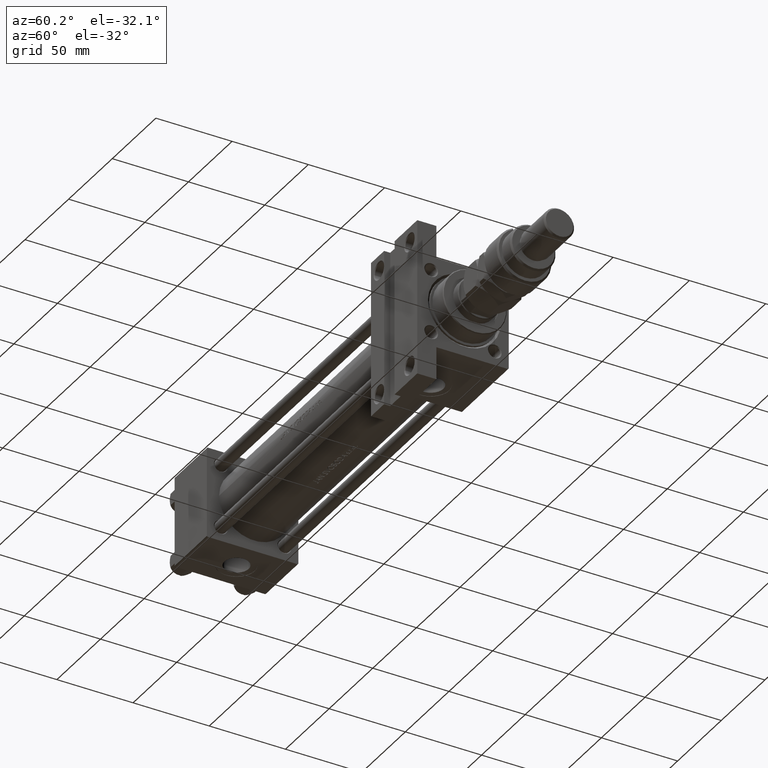
[diagram: clean part render]
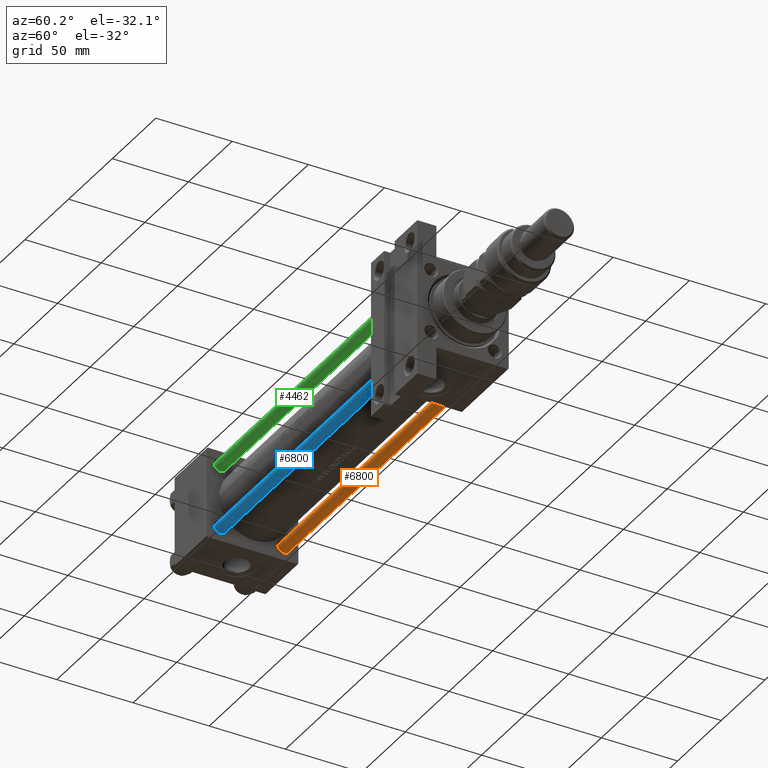
[diagram: same view with three faces highlighted in distinct colors, each labeled with its STEP entity id]
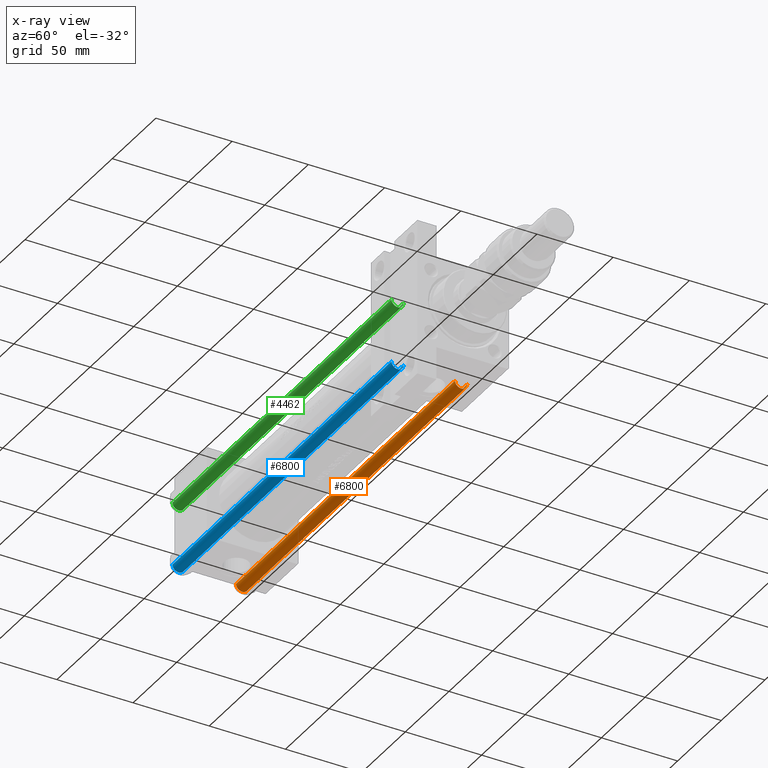
[diagram: x-ray of the same camera — body ghosted, the three highlighted faces saturated]
A machine part, auxiliary view with three faces highlighted in distinct colors.
The next image is the same camera in x-ray (body ghosted, the three faces saturated) — at least one of them is partly hidden behind the body in this view.
Their STEP definitions:

[orange] entity #6800 — the highlighted cylindrical surface (edge-blend (fillet) strip) has radius 4 mm, axis along (-1, -0, 0).
#1890 = VECTOR ( 'NONE', #8563, 1000.000000000000000 ) ;
#2473 = VERTEX_POINT ( 'NONE', #7571 ) ;
#4218 = CIRCLE ( 'NONE', #49252, 4.000000000000000000 ) ;
#5242 = CARTESIAN_POINT ( 'NONE',  ( 4.000000000000000000, 4.898587196589412829E-16, 251.5000000000000568 ) ) ;
#6390 = EDGE_CURVE ( 'NONE', #2473, #31240, #4218, .T. ) ;
#6477 = DIRECTION ( 'NONE',  ( 1.000000000000000000, 0.000000000000000000, 0.000000000000000000 ) ) ;
#6800 = ADVANCED_FACE ( 'NONE', ( #32683 ), #44892, .T. ) ;
#7454 = DIRECTION ( 'NONE',  ( -1.000000000000000000, 0.000000000000000000, 0.000000000000000000 ) ) ;
#7571 = CARTESIAN_POINT ( 'NONE',  ( -4.000000000000000000, 0.000000000000000000, 0.5000000000000004441 ) ) ;
#7733 = VECTOR ( 'NONE', #40095, 1000.000000000000000 ) ;
#8388 = EDGE_CURVE ( 'NONE', #22175, #2473, #24820, .T. ) ;
#8563 = DIRECTION ( 'NONE',  ( -0.000000000000000000, -0.000000000000000000, -1.000000000000000000 ) ) ;
#8711 = AXIS2_PLACEMENT_3D ( 'NONE', #28435, #44988, #24103 ) ;
#10100 = EDGE_CURVE ( 'NONE', #41567, #31240, #42468, .T. ) ;
#11784 = CARTESIAN_POINT ( 'NONE',  ( 0.000000000000000000, 0.000000000000000000, 252.0000000000000000 ) ) ;
#12130 = ORIENTED_EDGE ( 'NONE', *, *, #8388, .T. ) ;
#18099 = AXIS2_PLACEMENT_3D ( 'NONE', #11784, #36234, #7454 ) ;
#22161 = ORIENTED_EDGE ( 'NONE', *, *, #6390, .T. ) ;
#22175 = VERTEX_POINT ( 'NONE', #33499 ) ;
#22247 = DIRECTION ( 'NONE',  ( -0.000000000000000000, -0.000000000000000000, 1.000000000000000000 ) ) ;
#23829 = CARTESIAN_POINT ( 'NONE',  ( -4.000000000000000000, 0.000000000000000000, 252.0000000000000000 ) ) ;
#24103 = DIRECTION ( 'NONE',  ( 1.000000000000000000, 0.000000000000000000, 0.000000000000000000 ) ) ;
#24820 = LINE ( 'NONE', #23829, #7733 ) ;
#28365 = EDGE_LOOP ( 'NONE', ( #31263, #31354, #12130, #22161 ) ) ;
#28435 = CARTESIAN_POINT ( 'NONE',  ( 0.000000000000000000, 0.000000000000000000, 251.5000000000000568 ) ) ;
#31240 = VERTEX_POINT ( 'NONE', #47223 ) ;
#31263 = ORIENTED_EDGE ( 'NONE', *, *, #10100, .F. ) ;
#31354 = ORIENTED_EDGE ( 'NONE', *, *, #47254, .T. ) ;
#32683 = FACE_OUTER_BOUND ( 'NONE', #28365, .T. ) ;
#33499 = CARTESIAN_POINT ( 'NONE',  ( -4.000000000000000000, 0.000000000000000000, 251.5000000000000568 ) ) ;
#34731 = CARTESIAN_POINT ( 'NONE',  ( 0.000000000000000000, 0.000000000000000000, 0.5000000000000004441 ) ) ;
#36234 = DIRECTION ( 'NONE',  ( -0.000000000000000000, -0.000000000000000000, -1.000000000000000000 ) ) ;
#37350 = CARTESIAN_POINT ( 'NONE',  ( 4.000000000000000000, 4.898587196589412829E-16, 252.0000000000000000 ) ) ;
#40095 = DIRECTION ( 'NONE',  ( -0.000000000000000000, -0.000000000000000000, -1.000000000000000000 ) ) ;
#41567 = VERTEX_POINT ( 'NONE', #5242 ) ;
#42468 = LINE ( 'NONE', #37350, #1890 ) ;
#44892 = CYLINDRICAL_SURFACE ( 'NONE', #18099, 4.000000000000000000 ) ;
#44988 = DIRECTION ( 'NONE',  ( 0.000000000000000000, 0.000000000000000000, -1.000000000000000000 ) ) ;
#47223 = CARTESIAN_POINT ( 'NONE',  ( 4.000000000000000000, 4.898587196589412829E-16, 0.5000000000000004441 ) ) ;
#47254 = EDGE_CURVE ( 'NONE', #41567, #22175, #49462, .T. ) ;
#49252 = AXIS2_PLACEMENT_3D ( 'NONE', #34731, #22247, #6477 ) ;
#49462 = CIRCLE ( 'NONE', #8711, 4.000000000000000000 ) ;

[blue] entity #6800 — the highlighted cylindrical surface (edge-blend (fillet) strip) has radius 4 mm, axis along (1, 0, 0).
#1890 = VECTOR ( 'NONE', #8563, 1000.000000000000000 ) ;
#2473 = VERTEX_POINT ( 'NONE', #7571 ) ;
#4218 = CIRCLE ( 'NONE', #49252, 4.000000000000000000 ) ;
#5242 = CARTESIAN_POINT ( 'NONE',  ( 4.000000000000000000, 4.898587196589412829E-16, 251.5000000000000568 ) ) ;
#6390 = EDGE_CURVE ( 'NONE', #2473, #31240, #4218, .T. ) ;
#6477 = DIRECTION ( 'NONE',  ( 1.000000000000000000, 0.000000000000000000, 0.000000000000000000 ) ) ;
#6800 = ADVANCED_FACE ( 'NONE', ( #32683 ), #44892, .T. ) ;
#7454 = DIRECTION ( 'NONE',  ( -1.000000000000000000, 0.000000000000000000, 0.000000000000000000 ) ) ;
#7571 = CARTESIAN_POINT ( 'NONE',  ( -4.000000000000000000, 0.000000000000000000, 0.5000000000000004441 ) ) ;
#7733 = VECTOR ( 'NONE', #40095, 1000.000000000000000 ) ;
#8388 = EDGE_CURVE ( 'NONE', #22175, #2473, #24820, .T. ) ;
#8563 = DIRECTION ( 'NONE',  ( -0.000000000000000000, -0.000000000000000000, -1.000000000000000000 ) ) ;
#8711 = AXIS2_PLACEMENT_3D ( 'NONE', #28435, #44988, #24103 ) ;
#10100 = EDGE_CURVE ( 'NONE', #41567, #31240, #42468, .T. ) ;
#11784 = CARTESIAN_POINT ( 'NONE',  ( 0.000000000000000000, 0.000000000000000000, 252.0000000000000000 ) ) ;
#12130 = ORIENTED_EDGE ( 'NONE', *, *, #8388, .T. ) ;
#18099 = AXIS2_PLACEMENT_3D ( 'NONE', #11784, #36234, #7454 ) ;
#22161 = ORIENTED_EDGE ( 'NONE', *, *, #6390, .T. ) ;
#22175 = VERTEX_POINT ( 'NONE', #33499 ) ;
#22247 = DIRECTION ( 'NONE',  ( -0.000000000000000000, -0.000000000000000000, 1.000000000000000000 ) ) ;
#23829 = CARTESIAN_POINT ( 'NONE',  ( -4.000000000000000000, 0.000000000000000000, 252.0000000000000000 ) ) ;
#24103 = DIRECTION ( 'NONE',  ( 1.000000000000000000, 0.000000000000000000, 0.000000000000000000 ) ) ;
#24820 = LINE ( 'NONE', #23829, #7733 ) ;
#28365 = EDGE_LOOP ( 'NONE', ( #31263, #31354, #12130, #22161 ) ) ;
#28435 = CARTESIAN_POINT ( 'NONE',  ( 0.000000000000000000, 0.000000000000000000, 251.5000000000000568 ) ) ;
#31240 = VERTEX_POINT ( 'NONE', #47223 ) ;
#31263 = ORIENTED_EDGE ( 'NONE', *, *, #10100, .F. ) ;
#31354 = ORIENTED_EDGE ( 'NONE', *, *, #47254, .T. ) ;
#32683 = FACE_OUTER_BOUND ( 'NONE', #28365, .T. ) ;
#33499 = CARTESIAN_POINT ( 'NONE',  ( -4.000000000000000000, 0.000000000000000000, 251.5000000000000568 ) ) ;
#34731 = CARTESIAN_POINT ( 'NONE',  ( 0.000000000000000000, 0.000000000000000000, 0.5000000000000004441 ) ) ;
#36234 = DIRECTION ( 'NONE',  ( -0.000000000000000000, -0.000000000000000000, -1.000000000000000000 ) ) ;
#37350 = CARTESIAN_POINT ( 'NONE',  ( 4.000000000000000000, 4.898587196589412829E-16, 252.0000000000000000 ) ) ;
#40095 = DIRECTION ( 'NONE',  ( -0.000000000000000000, -0.000000000000000000, -1.000000000000000000 ) ) ;
#41567 = VERTEX_POINT ( 'NONE', #5242 ) ;
#42468 = LINE ( 'NONE', #37350, #1890 ) ;
#44892 = CYLINDRICAL_SURFACE ( 'NONE', #18099, 4.000000000000000000 ) ;
#44988 = DIRECTION ( 'NONE',  ( 0.000000000000000000, 0.000000000000000000, -1.000000000000000000 ) ) ;
#47223 = CARTESIAN_POINT ( 'NONE',  ( 4.000000000000000000, 4.898587196589412829E-16, 0.5000000000000004441 ) ) ;
#47254 = EDGE_CURVE ( 'NONE', #41567, #22175, #49462, .T. ) ;
#49252 = AXIS2_PLACEMENT_3D ( 'NONE', #34731, #22247, #6477 ) ;
#49462 = CIRCLE ( 'NONE', #8711, 4.000000000000000000 ) ;

[green] entity #4462 — the highlighted cylindrical surface (edge-blend (fillet) strip) has radius 4 mm, axis along (-1, 0, 0).
#1562 = AXIS2_PLACEMENT_3D ( 'NONE', #31725, #51082, #42665 ) ;
#1890 = VECTOR ( 'NONE', #8563, 1000.000000000000000 ) ;
#2446 = CYLINDRICAL_SURFACE ( 'NONE', #1562, 4.000000000000000000 ) ;
#2473 = VERTEX_POINT ( 'NONE', #7571 ) ;
#4462 = ADVANCED_FACE ( 'NONE', ( #47996 ), #2446, .T. ) ;
#5242 = CARTESIAN_POINT ( 'NONE',  ( 4.000000000000000000, 4.898587196589412829E-16, 251.5000000000000568 ) ) ;
#5295 = ORIENTED_EDGE ( 'NONE', *, *, #8388, .F. ) ;
#7571 = CARTESIAN_POINT ( 'NONE',  ( -4.000000000000000000, 0.000000000000000000, 0.5000000000000004441 ) ) ;
#7733 = VECTOR ( 'NONE', #40095, 1000.000000000000000 ) ;
#8388 = EDGE_CURVE ( 'NONE', #22175, #2473, #24820, .T. ) ;
#8563 = DIRECTION ( 'NONE',  ( -0.000000000000000000, -0.000000000000000000, -1.000000000000000000 ) ) ;
#10100 = EDGE_CURVE ( 'NONE', #41567, #31240, #42468, .T. ) ;
#12317 = DIRECTION ( 'NONE',  ( -0.000000000000000000, -0.000000000000000000, 1.000000000000000000 ) ) ;
#16047 = DIRECTION ( 'NONE',  ( 0.000000000000000000, 0.000000000000000000, -1.000000000000000000 ) ) ;
#19413 = ORIENTED_EDGE ( 'NONE', *, *, #26884, .T. ) ;
#19806 = AXIS2_PLACEMENT_3D ( 'NONE', #45164, #12317, #41616 ) ;
#21508 = EDGE_CURVE ( 'NONE', #31240, #2473, #49266, .T. ) ;
#22175 = VERTEX_POINT ( 'NONE', #33499 ) ;
#23829 = CARTESIAN_POINT ( 'NONE',  ( -4.000000000000000000, 0.000000000000000000, 252.0000000000000000 ) ) ;
#23907 = ORIENTED_EDGE ( 'NONE', *, *, #21508, .T. ) ;
#24473 = DIRECTION ( 'NONE',  ( 1.000000000000000000, 0.000000000000000000, 0.000000000000000000 ) ) ;
#24820 = LINE ( 'NONE', #23829, #7733 ) ;
#26884 = EDGE_CURVE ( 'NONE', #22175, #41567, #40652, .T. ) ;
#28572 = EDGE_LOOP ( 'NONE', ( #19413, #47692, #23907, #5295 ) ) ;
#31240 = VERTEX_POINT ( 'NONE', #47223 ) ;
#31725 = CARTESIAN_POINT ( 'NONE',  ( 0.000000000000000000, 0.000000000000000000, 252.0000000000000000 ) ) ;
#32849 = AXIS2_PLACEMENT_3D ( 'NONE', #44809, #16047, #24473 ) ;
#33499 = CARTESIAN_POINT ( 'NONE',  ( -4.000000000000000000, 0.000000000000000000, 251.5000000000000568 ) ) ;
#37350 = CARTESIAN_POINT ( 'NONE',  ( 4.000000000000000000, 4.898587196589412829E-16, 252.0000000000000000 ) ) ;
#40095 = DIRECTION ( 'NONE',  ( -0.000000000000000000, -0.000000000000000000, -1.000000000000000000 ) ) ;
#40652 = CIRCLE ( 'NONE', #32849, 4.000000000000000000 ) ;
#41567 = VERTEX_POINT ( 'NONE', #5242 ) ;
#41616 = DIRECTION ( 'NONE',  ( 1.000000000000000000, 0.000000000000000000, 0.000000000000000000 ) ) ;
#42468 = LINE ( 'NONE', #37350, #1890 ) ;
#42665 = DIRECTION ( 'NONE',  ( -1.000000000000000000, 0.000000000000000000, 0.000000000000000000 ) ) ;
#44809 = CARTESIAN_POINT ( 'NONE',  ( 0.000000000000000000, 0.000000000000000000, 251.5000000000000568 ) ) ;
#45164 = CARTESIAN_POINT ( 'NONE',  ( 0.000000000000000000, 0.000000000000000000, 0.5000000000000004441 ) ) ;
#47223 = CARTESIAN_POINT ( 'NONE',  ( 4.000000000000000000, 4.898587196589412829E-16, 0.5000000000000004441 ) ) ;
#47692 = ORIENTED_EDGE ( 'NONE', *, *, #10100, .T. ) ;
#47996 = FACE_OUTER_BOUND ( 'NONE', #28572, .T. ) ;
#49266 = CIRCLE ( 'NONE', #19806, 4.000000000000000000 ) ;
#51082 = DIRECTION ( 'NONE',  ( -0.000000000000000000, -0.000000000000000000, -1.000000000000000000 ) ) ;